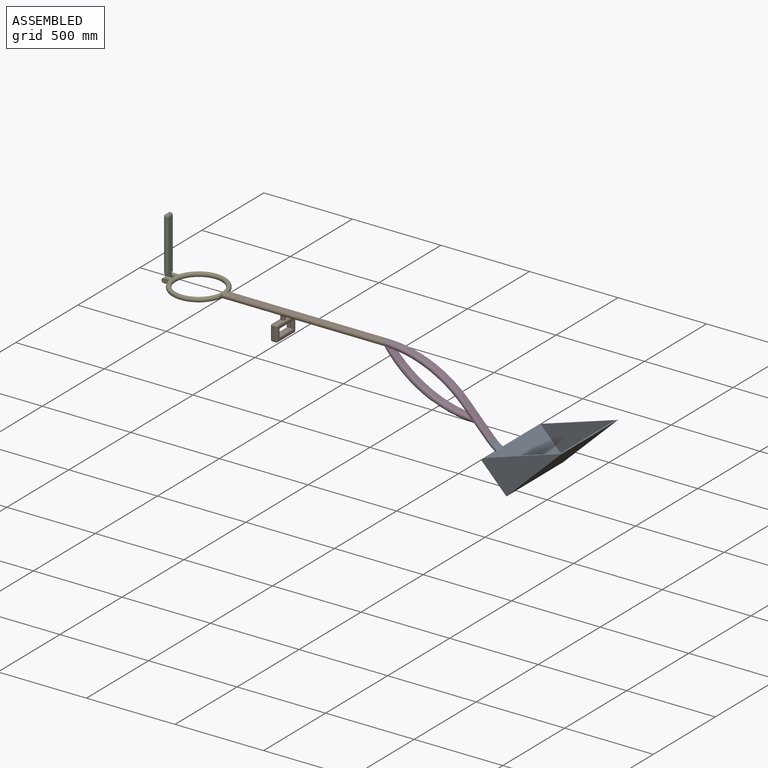
[diagram: assembled view]
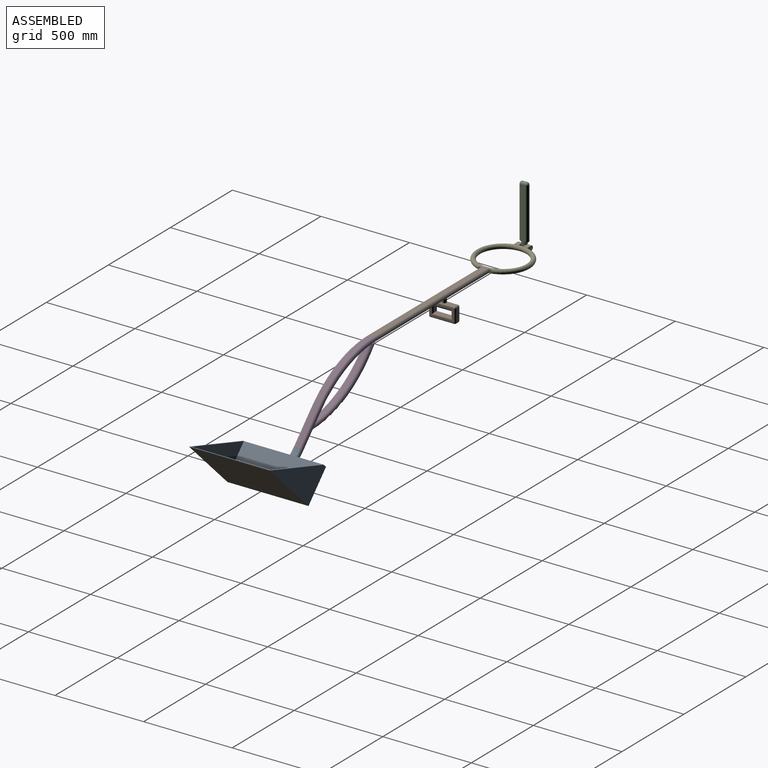
[diagram: assembled view, second angle]
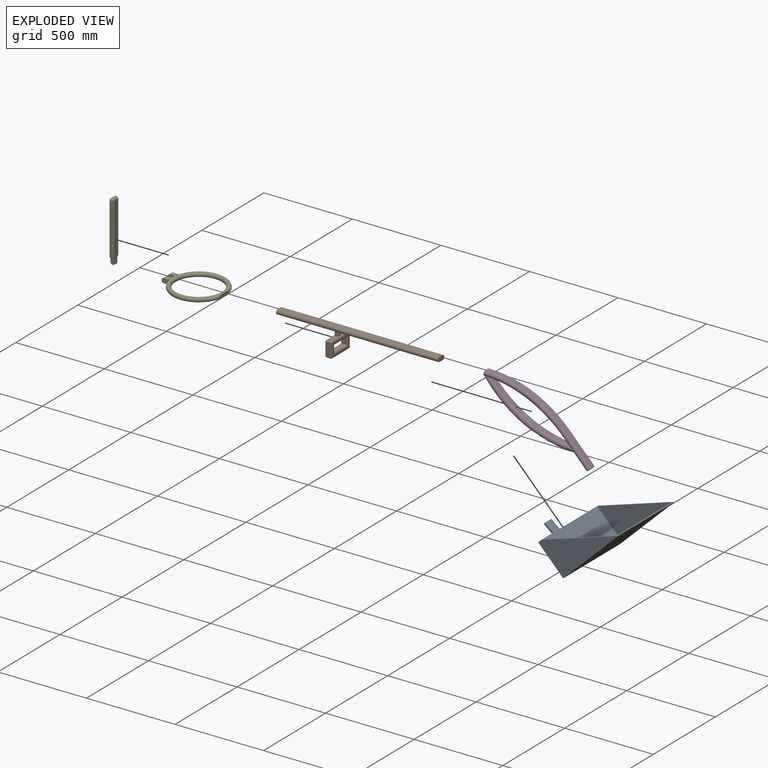
[diagram: exploded view]
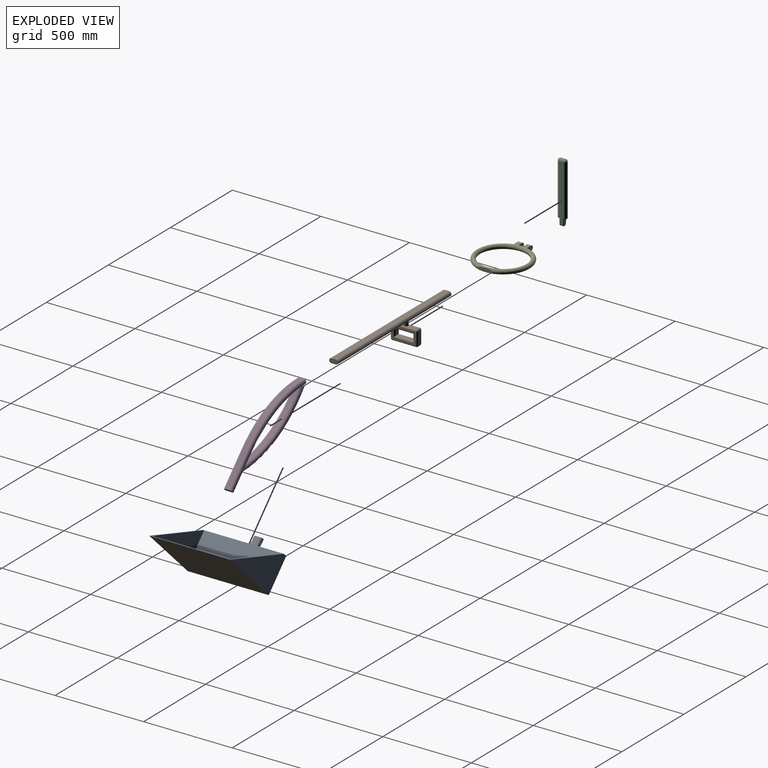
[diagram: exploded view, second angle]
ASSEMBLY  parts=5 mates=4
PART A: 15 faces, bbox 548.8x457.2x271.2 mm
  f0: plane 393.7x196.85mm, normal (0,1,0), area 38749.9mm2, adj f1,f3,f14
  f1: plane 444.5x393.7mm, normal (0,0,-1), area 174999.6mm2, adj f0,f2,f3,f14
  f2: plane 393.7x196.85mm, normal (0,-1,0), area 38749.9mm2, adj f1,f3,f14
  f3: plane 444.5x196.85mm, normal (1,0,0), area 87499.8mm2, adj f0,f1,f2,f11
  f4: torus R=254mm, axis (0,-1,0), area 8391.7mm2, adj f6,f7,f8,f13
  f5: torus R=254mm, axis (0,-1,0), area 8391.7mm2, adj f6,f7,f8,f13
  f6: cylinder r=266.7mm len=204.09mm, axis (0,-1,0), area 5903mm2, adj f4,f5,f8,f13
  f7: cylinder r=241.3mm len=169.55mm, axis (0,-1,0), area 4775.3mm2, adj f4,f5,f8,f13
  f8: plane 50.8x25.4mm, normal (0,0,-1), area 1151.9mm2, adj f4,f5,f6,f7
  f9: plane 457.2x431.8mm, normal (0,0,1), area 197419mm2, adj f10,f12,f13,f14
  f10: plane 431.8x203.2mm, normal (0,-1,0), area 46451.5mm2, adj f9,f11,f13,f14
  f11: plane 457.2x25.4mm, normal (0,0,-1), area 11612.9mm2, adj f3,f10,f12,f13,f14
  f12: plane 431.8x203.2mm, normal (0,1,0), area 46451.5mm2, adj f9,f11,f13,f14
  f13: plane 457.2x203.2mm, normal (-1,0,0), area 91337.4mm2, adj f4,f5,f6,f7,f9,f10,f11,f12
  f14: plane 457.2x406.4mm, normal (0.45,0,-0.89), area 12082mm2, adj f0,f1,f2,f9,f10,f11,f12
PART B: 55 faces, bbox 914.4x152.4x139.7 mm
  f0: plane 61.26x21.59mm, normal (0,0,1), area 1230.8mm2, adj f9,f32,f38,f39
  f1: plane 101.6x21.59mm, normal (0,0,-1), area 2193.5mm2, adj f19,f20,f23,f27
  f2: plane 316x25.4mm, normal (0,0,-1), area 7941.9mm2, adj f3,f5,f8,f11
  f3: cylinder r=12.7mm len=914.4mm, axis (-1,0,0), area 36398.5mm2, adj f2,f4,f6,f7,f8,f10
  f4: plane 570x25.4mm, normal (0,0,-1), area 14393.5mm2, adj f3,f5,f7,f12
  f5: cylinder r=12.7mm len=914.4mm, axis (-1,0,0), area 36398.5mm2, adj f2,f4,f6,f7,f8,f13
  f6: plane 914.4x25.4mm, normal (0,0,1), area 23225.8mm2, adj f3,f5,f7,f8
  f7: plane 50.8x25.4mm, normal (1,0,0), area 1151.9mm2, adj f3,f4,f5,f6
  f8: plane 50.8x25.4mm, normal (-1,0,0), area 1151.9mm2, adj f2,f3,f5,f6
  f9: cylinder r=12.7mm len=25.4mm, axis (0,0,1), area 1520.1mm2, adj f0,f10,f11,f12,f13,f18,f31,f35
  f10: bspline ~32.42x10.24mm, area 210.4mm2, adj f3,f9,f11,f12
  f11: torus R=19.05mm, axis (0,0,-1), area 218.5mm2, adj f2,f9,f10,f13
  f12: torus R=19.05mm, axis (0,0,-1), area 218.5mm2, adj f4,f9,f10,f13
  f13: bspline ~32.42x10.24mm, area 210.4mm2, adj f5,f9,f11,f12
  f14: plane 135.89x72.61mm, normal (1,0,0), area 3388.6mm2, adj f23,f24,f25,f26,f35,f39,f40,f49
  f15: plane 72.39x21.59mm, normal (0,-1,0), area 1562.9mm2, adj f37,f38,f48,f49
  f16: plane 135.89x72.61mm, normal (-1,0,0), area 3388.6mm2, adj f27,f28,f29,f30,f31,f32,f33,f37
  f17: plane 72.39x21.59mm, normal (0,1,0), area 1562.9mm2, adj f41,f42,f50,f51
  f18: plane 61.26x21.59mm, normal (0,0,1), area 1230.8mm2, adj f9,f33,f40,f41
  f19: plane 38.1x21.59mm, normal (0,-1,0), area 822.6mm2, adj f1,f21,f25,f29
  f20: plane 38.1x21.59mm, normal (0,1,0), area 822.6mm2, adj f1,f21,f24,f28
  f21: plane 101.6x21.59mm, normal (0,0,1), area 2193.5mm2, adj f19,f20,f26,f30
  f22: plane 135.89x21.59mm, normal (0,0,-1), area 2933.9mm2, adj f43,f48,f51,f54
  f23: cylinder r=8.26mm len=118.11mm, axis (0,1,0), area 1395.2mm2, adj f1,f14,f24,f25
  f24: cylinder r=8.26mm len=54.61mm, axis (0,0,-1), area 571.8mm2, adj f14,f20,f23,f26
  f25: cylinder r=8.26mm len=54.61mm, axis (0,0,1), area 571.8mm2, adj f14,f19,f23,f26
  f26: cylinder r=8.26mm len=118.11mm, axis (0,-1,0), area 1395.2mm2, adj f14,f21,f24,f25
  f27: cylinder r=8.26mm len=118.11mm, axis (0,-1,0), area 1395.2mm2, adj f1,f16,f28,f29
  f28: cylinder r=8.26mm len=54.61mm, axis (0,0,1), area 571.8mm2, adj f16,f20,f27,f30
  f29: cylinder r=8.26mm len=54.61mm, axis (0,0,-1), area 571.8mm2, adj f16,f19,f27,f30
  f30: cylinder r=8.26mm len=118.11mm, axis (0,1,0), area 1395.2mm2, adj f16,f21,f28,f29
  f31: bspline ~13.38x8.26mm, area 156.2mm2, adj f9,f16,f32,f33
  f32: cylinder r=8.26mm len=61.26mm, axis (0,1,0), area 794.3mm2, adj f0,f16,f31,f34
  f33: cylinder r=8.26mm len=61.26mm, axis (0,1,0), area 794.3mm2, adj f16,f18,f31,f36
  f34: sphere r=8.26mm, area 107mm2, adj f32,f37,f38
  f35: bspline ~13.38x8.26mm, area 156.2mm2, adj f9,f14,f39,f40
  f36: sphere r=8.26mm, area 107mm2, adj f33,f41,f42
  f37: cylinder r=8.26mm len=72.39mm, axis (0,0,1), area 938.7mm2, adj f15,f16,f34,f44
  f38: cylinder r=8.26mm len=21.59mm, axis (-1,0,0), area 280mm2, adj f0,f15,f34,f45
  f39: cylinder r=8.26mm len=61.26mm, axis (0,-1,0), area 794.3mm2, adj f0,f14,f35,f45
  f40: cylinder r=8.26mm len=61.26mm, axis (0,-1,0), area 794.3mm2, adj f14,f18,f35,f46
  f41: cylinder r=8.26mm len=21.59mm, axis (1,0,0), area 280mm2, adj f17,f18,f36,f46
  f42: cylinder r=8.26mm len=72.39mm, axis (0,0,-1), area 938.7mm2, adj f16,f17,f36,f47
  f43: cylinder r=8.26mm len=135.89mm, axis (0,-1,0), area 1762.1mm2, adj f16,f22,f44,f47
  f44: sphere r=8.26mm, area 107mm2, adj f37,f43,f48
  f45: sphere r=8.26mm, area 107mm2, adj f38,f39,f49
  f46: sphere r=8.26mm, area 107mm2, adj f40,f41,f50
  f47: sphere r=8.26mm, area 107mm2, adj f42,f43,f51
  f48: cylinder r=8.26mm len=21.59mm, axis (-1,0,0), area 280mm2, adj f15,f22,f44,f52
  f49: cylinder r=8.26mm len=72.39mm, axis (0,0,-1), area 938.7mm2, adj f14,f15,f45,f52
  f50: cylinder r=8.26mm len=72.39mm, axis (0,0,1), area 938.7mm2, adj f14,f17,f46,f53
  f51: cylinder r=8.26mm len=21.59mm, axis (-1,0,0), area 280mm2, adj f17,f22,f47,f53
  f52: sphere r=8.26mm, area 107mm2, adj f48,f49,f54
  f53: sphere r=8.26mm, area 107mm2, adj f50,f51,f54
  f54: cylinder r=8.26mm len=135.89mm, axis (0,1,0), area 1762.1mm2, adj f14,f22,f52,f53
PART C: 18 faces, bbox 27.5x342.9x52.9 mm
  f0: plane 317.5x25.4mm, normal (-1,0,0), area 7862.9mm2, adj f2,f3,f4,f7,f8,f9,f14,f16
  f1: plane 317.5x25.4mm, normal (1,0,0), area 7862.9mm2, adj f2,f3,f4,f7,f8,f11,f12,f16
  f2: plane 44.45x25.4mm, normal (0,0,-1), area 915.8mm2, adj f0,f1,f4,f5,f9,f11
  f3: plane 44.45x25.4mm, normal (0,0,1), area 915.8mm2, adj f0,f1,f4,f6,f12,f14
  f4: cylinder r=12.7mm len=25.4mm, axis (0,0,1), area 760.1mm2, adj f0,f1,f2,f3
  f5: plane 12.7x9.53mm, normal (0,1,0), area 103.7mm2, adj f2,f9,f10,f11
  f6: plane 12.7x9.53mm, normal (0,1,0), area 103.7mm2, adj f3,f12,f13,f14
  f7: cylinder r=12.7mm len=285.75mm, axis (0,-1,0), area 11400.9mm2, adj f0,f1,f13,f17
  f8: cylinder r=12.7mm len=285.75mm, axis (0,-1,0), area 11400.9mm2, adj f0,f1,f10,f15
  f9: cylinder r=6.35mm len=6.35mm, axis (0,0,1), area 31.7mm2, adj f0,f2,f5,f10
  f10: torus R=6.35mm, axis (0,-1,0), area 325.7mm2, adj f5,f8,f9,f11
  f11: cylinder r=6.35mm len=6.35mm, axis (0,0,-1), area 31.7mm2, adj f1,f2,f5,f10
  f12: cylinder r=6.35mm len=6.35mm, axis (0,0,-1), area 31.7mm2, adj f1,f3,f6,f13
  f13: torus R=6.35mm, axis (0,-1,0), area 325.7mm2, adj f6,f7,f12,f14
  f14: cylinder r=6.35mm len=6.35mm, axis (0,0,1), area 31.7mm2, adj f0,f3,f6,f13
  f15: sphere r=12.7mm, area 506.7mm2, adj f8,f16
  f16: cylinder r=12.7mm len=25.4mm, axis (0,0,-1), area 1013.4mm2, adj f0,f1,f15,f17
  f17: sphere r=12.7mm, area 506.7mm2, adj f7,f16
PART D: 30 faces, bbox 640.3x50.9x410.6 mm
  f0: plane 0.31x0.12mm, normal (0.93,0,0.37), area 0mm2, adj f6,f7,f20,f23
  f1: plane 0.3x0.12mm, normal (0.93,0,0.37), area 0mm2, adj f4,f5,f21,f25
  f2: cylinder r=635mm len=446.82mm, axis (0,1,0), area 13100.6mm2, adj f4,f6,f10,f22
  f3: cylinder r=635mm len=506.34mm, axis (0,1,0), area 14945.2mm2, adj f5,f7,f9,f24
  f4: torus R=647.7mm, axis (0,-1,0), area 10703mm2, adj f1,f2,f15,f18,f21,f22,f25
  f5: torus R=622.3mm, axis (0,-1,0), area 11621.1mm2, adj f1,f3,f18,f21,f24,f25
  f6: torus R=647.7mm, axis (0,-1,0), area 10703mm2, adj f0,f2,f17,f19,f20,f22,f23
  f7: torus R=622.3mm, axis (0,-1,0), area 11621.1mm2, adj f0,f3,f19,f20,f23,f24
  f8: cylinder r=635mm len=457.2mm, axis (0,1,0), area 12964.5mm2, adj f9,f14,f16,f27
  f9: plane 50.89x25.49mm, normal (-1,0,0), area 1151.9mm2, adj f3,f8,f14,f15,f16,f17
  f10: cylinder r=635mm len=405.2mm, axis (0,1,0), area 11560.9mm2, adj f2,f11,f15,f17
  f11: plane 28.03x0.06mm, normal (0.69,0,-0.72), area 1.8mm2, adj f10,f15,f17,f22
  f12: plane 447.87x190.36mm, normal (0,-1,0), area 697.4mm2, adj f16,f17
  f13: plane 447.87x190.36mm, normal (0,1,0), area 697.4mm2, adj f14,f15
  f14: torus R=622.3mm, axis (0,-1,0), area 10108.3mm2, adj f8,f9,f13,f15,f26
  f15: torus R=647.7mm, axis (0,-1,0), area 9715mm2, adj f4,f9,f10,f11,f13,f14,f18,f25
  f16: torus R=622.3mm, axis (0,-1,0), area 10108.3mm2, adj f8,f9,f12,f17,f28
  f17: torus R=647.7mm, axis (0,-1,0), area 9715.1mm2, adj f6,f9,f10,f11,f12,f16,f19,f23
  f18: plane 30.85x12.7mm, normal (0,0,1), area 218.3mm2, adj f4,f5,f15,f21
  f19: plane 30.85x12.7mm, normal (0,0,1), area 218.3mm2, adj f6,f7,f17,f20
  f20: plane 495.61x243.73mm, normal (0,-1,0), area 1150.9mm2, adj f0,f6,f7,f19
  f21: plane 495.61x243.73mm, normal (0,1,0), area 1150.9mm2, adj f1,f4,f5,f18
  f22: plane 43.24x41.68mm, normal (-0.72,0,-0.69), area 1678.5mm2, adj f2,f4,f6,f11,f23,f25
  f23: extruded ~155.07x150.11mm, area 3365.7mm2, adj f0,f6,f7,f17,f22,f24,f28,f29
  f24: plane 76.5x73.73mm, normal (-0.72,0,-0.69), area 2972.8mm2, adj f3,f5,f7,f23,f25,f29
  f25: extruded ~155.07x150.11mm, area 3366.9mm2, adj f1,f4,f5,f15,f22,f24,f26,f29
  f26: cylinder r=12.7mm len=155.12mm, axis (-0.69,0,0.72), area 4053.5mm2, adj f14,f25,f27,f29
  f27: plane 146.3x141.02mm, normal (0.72,0,0.69), area 5161.3mm2, adj f8,f26,f28,f29
  f28: cylinder r=12.7mm len=155.12mm, axis (-0.69,0,0.72), area 4053.5mm2, adj f16,f23,f27,f29
  f29: plane 50.81x18.25mm, normal (0.69,0,-0.72), area 1150mm2, adj f23,f24,f25,f26,f27,f28
PART E: 19 faces, bbox 349.1x25.4x329.9 mm
  f0: plane 31.75x25.4mm, normal (0,-1,0), area 806.5mm2, adj f1,f6,f8,f9
  f1: plane 25.41x1.07mm, normal (-1,0,0), area 8mm2, adj f0,f2,f6,f9
  f2: torus R=139.7mm, axis (0,1,0), area 67306.9mm2, adj f1,f3,f5,f6,f9
  f3: plane 25.41x1.07mm, normal (-1,0,0), area 8mm2, adj f2,f4,f6,f9
  f4: plane 31.75x25.4mm, normal (0,1,0), area 806.5mm2, adj f3,f6,f8,f9
  f5: plane 87.07x22mm, normal (-1,0,0), area 1571.6mm2, adj f2
  f6: plane 44.45x25.4mm, normal (0,0,1), area 896.4mm2, adj f0,f1,f2,f3,f4,f7,f8
  f7: cylinder r=3.17mm len=25.4mm, axis (0,0,-1), area 506.7mm2, adj f6,f9
  f8: cylinder r=12.7mm len=25.4mm, axis (0,0,-1), area 1013.4mm2, adj f0,f4,f6,f9
  f9: plane 44.45x25.4mm, normal (0,0,-1), area 788.5mm2, adj f0,f1,f2,f3,f4,f7,f8
  f10: plane 44.45x25.4mm, normal (0,0,1), area 788.5mm2, adj f11,f13,f14,f15,f16,f17,f18
  f11: plane 25.41x1.07mm, normal (-1,0,0), area 8mm2, adj f10,f12,f13,f17
  f12: plane 44.45x25.4mm, normal (0,0,-1), area 896.4mm2, adj f11,f13,f14,f15,f16,f17,f18
  f13: torus R=139.7mm, axis (0,1,0), area 900mm2, adj f10,f11,f12,f14
  f14: plane 25.41x1.07mm, normal (-1,0,0), area 8mm2, adj f10,f12,f13,f15
  f15: plane 31.75x25.4mm, normal (0,1,0), area 806.5mm2, adj f10,f12,f14,f16
  f16: cylinder r=12.7mm len=25.4mm, axis (0,0,1), area 1013.4mm2, adj f10,f12,f15,f17
  f17: plane 31.75x25.4mm, normal (0,-1,0), area 806.5mm2, adj f10,f11,f12,f16
  f18: cylinder r=3.17mm len=25.4mm, axis (0,0,-1), area 506.7mm2, adj f10,f12
PLACE A rot(axis=(-0.93,0,-0.37),180deg) t=(1533.77,-0.92,-655.83)mm
PLACE B t=(487.48,-0.93,-319.1)mm
PLACE C rot(axis=(-1,0,0),90deg) t=(-458.67,-0.92,-319.1)mm
PLACE D t=(487.48,-0.92,-319.1)mm
PLACE E rot(axis=(0,-0.71,0.71),180deg) t=(-115.77,-0.92,-319.1)mm
MATE fastened B.f7 <-> D.f9  axis (1,0,0) through (944.68,-0.93,-319.1)mm
MATE fastened A.f8 <-> D.f29  axis (-0.69,0,0.72) through (1533.77,-0.92,-655.83)mm
MATE fastened C.f4 <-> E.f7  axis (0,1,0) through (-287.22,8.6,-319.1)mm
MATE fastened E.f5 <-> B.f8  axis (1,0,0) through (30.28,-0.93,-319.1)mm
